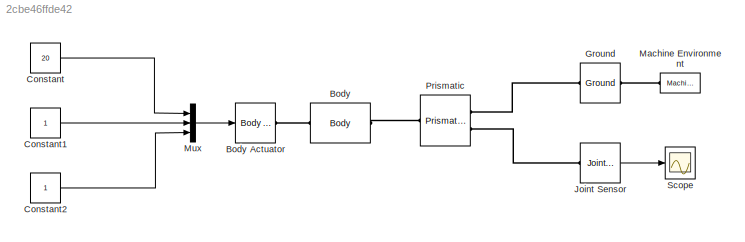
MODEL slx_2cbe46ffde42
KIND model
CONFIG AbsTol = auto
CONFIG FixedStep = auto
CONFIG MaxStep = auto
CONFIG MinStep = auto
CONFIG RelTol = 1e-3
CONFIG SampleTimeConstraint = Unconstrained
CONFIG Solver = ode45
CONFIG SolverMode = SingleTasking
CONFIG SolverName = ode45
CONFIG StartTime = 0.0
CONFIG StopTime = 10.0
BLOCK [Reference] Body  REF=mblibv1/Bodies/Body
  AttachedToCS = CG
  BodyColor = [1 0 0]
  BodyColorSelMode = MACHINE_DEFAULT
  CG = Left$CG$[0 0 0]$WORLD$WORLD$m$[0 0 0]$Euler X-Y-Z$deg$WORLD$false$none
  CGPos = [0 0 0]
  CGRot = [0 0 0]
  CS0Pos = []
  CS0Rot = []
  CS10Pos = []
  CS10Rot = []
  CS11Pos = []
  CS11Rot = []
  CS12Pos = []
  CS12Rot = []
  CS13Pos = []
  CS13Rot = []
  CS14Pos = []
  CS14Rot = []
  CS15Pos = []
  CS15Rot = []
  CS16Pos = []
  CS16Rot = []
  CS17Pos = []
  CS17Rot = []
  CS18Pos = []
  CS18Rot = []
  CS19Pos = []
  CS19Rot = []
  CS1Pos = [0 0 0]
  CS1Rot = [0 0 0]
  CS20Pos = []
  CS20Rot = []
  CS2Pos = [0 0 0]
  CS2Rot = [0 0 0]
  CS3Pos = []
  CS3Rot = []
  CS4Pos = []
  CS4Rot = []
  CS5Pos = []
  CS5Rot = []
  CS6Pos = []
  CS6Rot = []
  CS7Pos = []
  CS7Rot = []
  CS8Pos = []
  CS8Rot = []
  CS9Pos = []
  CS9Rot = []
  ClassName = Body
  Density = 1
  DensityUnits = kg/m^3
  DensityUse = false
  DialogClass = MechanicalBodyBlock
  GraphicsMode = MACHINE_DEFAULT
  Inertia = eye(3)
  InertiaUnits = kg*m^2
  LConnTagsString = CS1
  Mass = 01
  MassUnits = kg
  Ports = [0, 0, 0, 0, 0, 1, 1]
  RConnTagsString = CS2
  Shape = Cylinder
  ShapeDims = [1 1]
  ShapeUnits = m
  ShapeUse = false
  SourceBlock = mblibv1/Bodies/Body
  SourceType = Body
  UpdateFromCAD = off
  WorkingFrames = Left$CS1$[0 0 0]$World$World$m$[0 0 0]$Euler X-Y-Z$deg$WORLD$true$none#Right$CS2$[0 0 0]$World$World$m$[0 0 0]$Euler X-Y-Z$deg$WORLD$true$none
BLOCK [Reference] Body Actuator  REF=mblibv1/Sensors & 
Actuators/Body Actuator
  AccelerationUnits = m/s^2
  ActiveIO = on
  ActuationStyle = Force
  Angle = off
  AngleUnits = deg
  ArcAccelerationUnits = deg/s^2
  ArcVelocityUnits = deg/s
  ClassName = BodyActuatorForceTorque
  CoordPosition = on
  CoordPositionUnits = m
  DialogClass = MechanicalActuatorBlock
  Force = on
  ForceUnits = N
  PhysicalDomain = Mechanical
  PortType = blob
  Ports = [1, 0, 0, 0, 0, 0, 1]
  ReferenceFrame = Absolute (World)
  SourceBlock = mblibv1/Sensors & \nActuators/Body Actuator
  SourceType = Body Actuator
  Torque = off
  TorqueUnits = N*m
  UpdateFromCAD = off
  VelocityUnits = m/s
  Width = 3
BLOCK [Constant] Constant
  Value = 20
BLOCK [Constant] Constant1
BLOCK [Constant] Constant2
BLOCK [Reference] Ground  REF=mblibv1/Bodies/Ground
  ClassName = Ground
  CoordPosition = [0 0 0]
  CoordPositionUnits = m
  DialogClass = GroundBlock
  LeftPortType = env
  MachineId = [0 0]
  ParameterChecksum = [66101670, 1604582350, 2389925564, 3655901936]
  PhysicalDomain = Mechanical
  Ports = [0, 0, 0, 0, 0, 1, 1]
  RightPortType = workingframe
  ShowEnvPort = on
  SourceBlock = mblibv1/Bodies/Ground
  SourceType = Ground
  StateVectorMgrId = -1
  TopologyChecksum = [1969409997, 4110709756, 544976281, 3825660451]
  UpdateFromCAD = off
  UserDataPersistent = on
BLOCK [Reference] Joint Sensor  REF=mblibv1/Sensors & 
Actuators/Joint Sensor
  Acceleration = on
  AccelerationUnits = m/s^2
  ActiveIO = on
  Angle = on
  AngleUnits = deg
  ArcAcceleration = off
  ArcAccelerationUnits = deg/s^2
  ArcVelocity = off
  ArcVelocityUnits = deg/s
  ClassName = JointSensor
  CoordPosition = on
  CoordPositionUnits = m
  DialogClass = MechanicalSensorBlock
  Force = off
  ForceUnits = N
  Muxed = on
  OutputVector = [1]
  PhysicalDomain = Mechanical
  PortType = blob
  Ports = [0, 1, 0, 0, 0, 1]
  Pose = off
  Primitive = P1
  Quaternion = on
  QuaternionDDT = off
  QuaternionDT = off
  QuaternionUnits = off
  ReactionForce = off
  ReactionForceUnits = N
  ReactionMoment = off
  ReactionMomentUnits = N*m
  ReactionReferenceFrame = Absolute (World)
  ReactionSensedSide = Base
  ReferenceFrame = Absolute (World)
  SourceBlock = mblibv1/Sensors & \nActuators/Joint Sensor
  SourceType = Joint Sensor
  Torque = off
  TorqueUnits = N*m
  UpdateFromCAD = off
  Velocity = on
  VelocityUnits = m/s
  Width = 3
BLOCK [Reference] Machine Environment  REF=mblibv1/Bodies/Machine
Environment
  AnalysisType = Forward dynamics
  AngularAssemblyTolerance = 1e-3
  AngularAssemblyToleranceUnits = rad
  BodyColorSelMode = Use model default
  BodyVisualizationType = Use model default body geometries
  ClassName = Environment
  ConstraintAbsTolerance = 1e-4
  ConstraintRelTolerance = 1e-4
  ConstraintSolverType = Stabilizing
  DefaultBodyColor = [1 0 0]
  DialogTemplateClass = MECH.MachineEnvironment
  Dimensionality = Auto-detect
  Gravity = [0 -9.81 0]
  GravityAsSignal = off
  GravityUnits = m/s^2
  LinearAssemblyTolerance = 1e-3
  LinearAssemblyToleranceUnits = m
  PerturbationSize = 1e-5
  PhysicalDomain = Mechanical
  PortType = env
  Ports = [0, 0, 0, 0, 0, 0, 1]
  RedundancyAnalysisTolerance = 1e-14
  RedundancyAnalysisToleranceType = Automatically select tolerance
  SourceBlock = mblibv1/Bodies/Machine\nEnvironment
  SourceType = Machine Environment
  StatePerturbationType = Fixed
  SyncWhenCopied = off
  UseRobustSingularityHandling = off
  VisualizeMachine = on
BLOCK [Mux] Mux
  DisplayOption = bar
  Inputs = 3
  Ports = [3, 1]
BLOCK [Reference] Prismatic  REF=mblibv1/Joints/Prismatic
  ClassName = Joint
  CutJoint = off
  DialogClass = JointBlock
  LConnTagsString = __newl0|SA1
  MarkAsCut = off
  NumSAPorts = 1
  P1Axis = [0 0 1]
  Ports = [0, 0, 0, 0, 0, 2, 1]
  PrimitiveProps = P1$World$[0 0 1]$prismatic
  Primitives = prismatic
  RConnTagsString = __newr0
  SourceBlock = mblibv1/Joints/Prismatic
  SourceType = Prismatic
  UpdateFromCAD = off
BLOCK [Scope] Scope
  DataFormat = StructureWithTime
  Decimation = 1
  Grid = on
  LimitDataPoints = off
  MaxDataPoints = 5000
  NumInputPorts = 1
  Ports = [1]
  SampleInput = off
  SampleTime = -1
  SaveName = ScopeData
  SaveToWorkspace = off
  ShowLegends = off
  TickLabels = OneTimeTick
  TimeRange = auto
  YMax = 56.25
  YMin = -6.25
  ZoomMode = on
LINE Constant1:1 -> Mux:2
LINE Constant2:1 -> Mux:3
LINE Constant:1 -> Mux:1
LINE Joint Sensor:1 -> Scope:1
LINE Mux:1 -> Body Actuator:1
PLINE Body Actuator:RConn1 -- Body:RConn1
PLINE Body:LConn1 -- Prismatic:RConn1
PLINE Ground:LConn1 -- Machine Environment:RConn1
PLINE Ground:RConn1 -- Prismatic:LConn1
PLINE Joint Sensor:LConn1 -- Prismatic:LConn2
